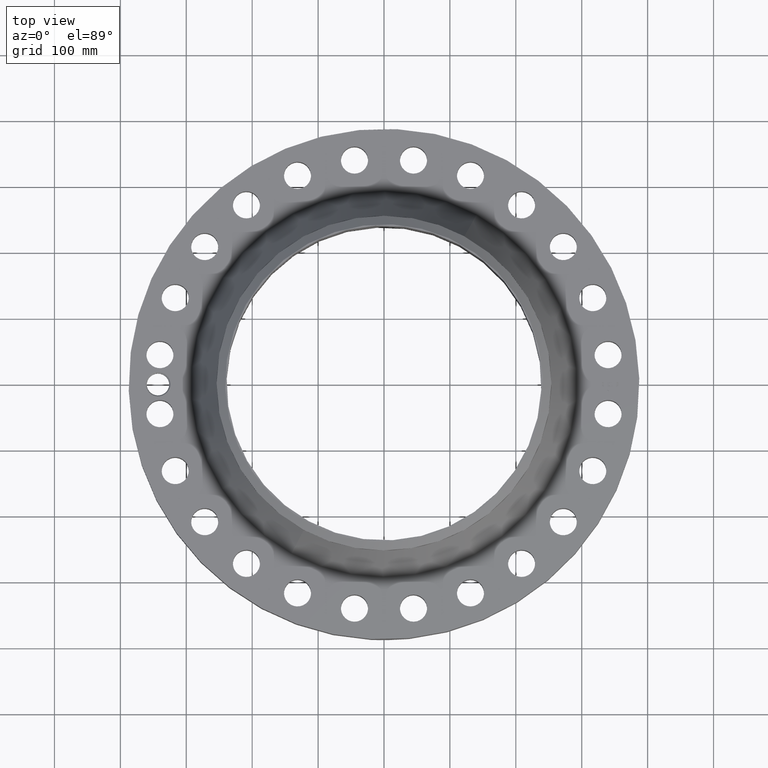
[diagram: clean part render]
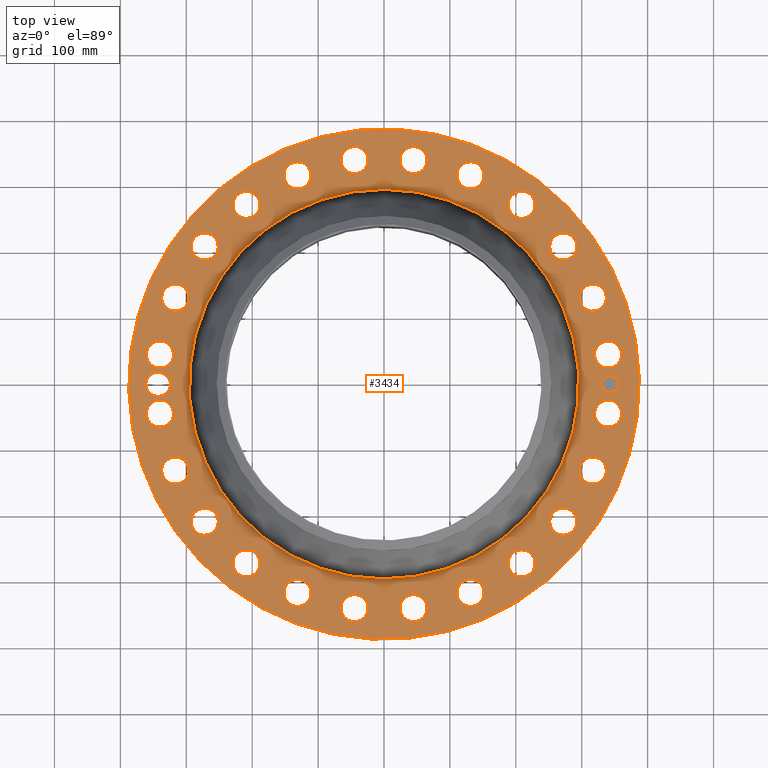
[diagram: same view with one face highlighted and labeled with its STEP entity id]
A machine part, top view. The second image highlights one B-rep face of the part: STEP entity #3434.
In plain terms, the highlighted planar face has unit normal (0, 0, -1).
Its self-contained STEP definition (entity closure, byte-faithful):
#2190=AXIS2_PLACEMENT_3D('Circle Axis2P3D',#2188,#2189,$) ;
#2216=AXIS2_PLACEMENT_3D('Circle Axis2P3D',#2214,#2215,$) ;
#2914=AXIS2_PLACEMENT_3D('Plane Axis2P3D',#2911,#2912,#2913) ;
#2918=AXIS2_PLACEMENT_3D('Circle Axis2P3D',#2916,#2917,$) ;
#2927=AXIS2_PLACEMENT_3D('Circle Axis2P3D',#2925,#2926,$) ;
#2964=AXIS2_PLACEMENT_3D('Circle Axis2P3D',#2962,#2963,$) ;
#2971=AXIS2_PLACEMENT_3D('Circle Axis2P3D',#2969,#2970,$) ;
#2982=AXIS2_PLACEMENT_3D('Circle Axis2P3D',#2980,#2981,$) ;
#2991=AXIS2_PLACEMENT_3D('Circle Axis2P3D',#2989,#2990,$) ;
#3004=AXIS2_PLACEMENT_3D('Circle Axis2P3D',#3002,#3003,$) ;
#3013=AXIS2_PLACEMENT_3D('Circle Axis2P3D',#3011,#3012,$) ;
#3022=AXIS2_PLACEMENT_3D('Circle Axis2P3D',#3020,#3021,$) ;
#3031=AXIS2_PLACEMENT_3D('Circle Axis2P3D',#3029,#3030,$) ;
#3040=AXIS2_PLACEMENT_3D('Circle Axis2P3D',#3038,#3039,$) ;
#3049=AXIS2_PLACEMENT_3D('Circle Axis2P3D',#3047,#3048,$) ;
#3058=AXIS2_PLACEMENT_3D('Circle Axis2P3D',#3056,#3057,$) ;
#3067=AXIS2_PLACEMENT_3D('Circle Axis2P3D',#3065,#3066,$) ;
#3076=AXIS2_PLACEMENT_3D('Circle Axis2P3D',#3074,#3075,$) ;
#3085=AXIS2_PLACEMENT_3D('Circle Axis2P3D',#3083,#3084,$) ;
#3094=AXIS2_PLACEMENT_3D('Circle Axis2P3D',#3092,#3093,$) ;
#3103=AXIS2_PLACEMENT_3D('Circle Axis2P3D',#3101,#3102,$) ;
#3112=AXIS2_PLACEMENT_3D('Circle Axis2P3D',#3110,#3111,$) ;
#3121=AXIS2_PLACEMENT_3D('Circle Axis2P3D',#3119,#3120,$) ;
#3130=AXIS2_PLACEMENT_3D('Circle Axis2P3D',#3128,#3129,$) ;
#3139=AXIS2_PLACEMENT_3D('Circle Axis2P3D',#3137,#3138,$) ;
#3148=AXIS2_PLACEMENT_3D('Circle Axis2P3D',#3146,#3147,$) ;
#3157=AXIS2_PLACEMENT_3D('Circle Axis2P3D',#3155,#3156,$) ;
#3166=AXIS2_PLACEMENT_3D('Circle Axis2P3D',#3164,#3165,$) ;
#3175=AXIS2_PLACEMENT_3D('Circle Axis2P3D',#3173,#3174,$) ;
#3184=AXIS2_PLACEMENT_3D('Circle Axis2P3D',#3182,#3183,$) ;
#3193=AXIS2_PLACEMENT_3D('Circle Axis2P3D',#3191,#3192,$) ;
#3202=AXIS2_PLACEMENT_3D('Circle Axis2P3D',#3200,#3201,$) ;
#3211=AXIS2_PLACEMENT_3D('Circle Axis2P3D',#3209,#3210,$) ;
#3220=AXIS2_PLACEMENT_3D('Circle Axis2P3D',#3218,#3219,$) ;
#3229=AXIS2_PLACEMENT_3D('Circle Axis2P3D',#3227,#3228,$) ;
#3238=AXIS2_PLACEMENT_3D('Circle Axis2P3D',#3236,#3237,$) ;
#3247=AXIS2_PLACEMENT_3D('Circle Axis2P3D',#3245,#3246,$) ;
#3256=AXIS2_PLACEMENT_3D('Circle Axis2P3D',#3254,#3255,$) ;
#3265=AXIS2_PLACEMENT_3D('Circle Axis2P3D',#3263,#3264,$) ;
#3274=AXIS2_PLACEMENT_3D('Circle Axis2P3D',#3272,#3273,$) ;
#3283=AXIS2_PLACEMENT_3D('Circle Axis2P3D',#3281,#3282,$) ;
#3292=AXIS2_PLACEMENT_3D('Circle Axis2P3D',#3290,#3291,$) ;
#3301=AXIS2_PLACEMENT_3D('Circle Axis2P3D',#3299,#3300,$) ;
#3310=AXIS2_PLACEMENT_3D('Circle Axis2P3D',#3308,#3309,$) ;
#3319=AXIS2_PLACEMENT_3D('Circle Axis2P3D',#3317,#3318,$) ;
#3328=AXIS2_PLACEMENT_3D('Circle Axis2P3D',#3326,#3327,$) ;
#3337=AXIS2_PLACEMENT_3D('Circle Axis2P3D',#3335,#3336,$) ;
#3346=AXIS2_PLACEMENT_3D('Circle Axis2P3D',#3344,#3345,$) ;
#3355=AXIS2_PLACEMENT_3D('Circle Axis2P3D',#3353,#3354,$) ;
#3364=AXIS2_PLACEMENT_3D('Circle Axis2P3D',#3362,#3363,$) ;
#3373=AXIS2_PLACEMENT_3D('Circle Axis2P3D',#3371,#3372,$) ;
#3382=AXIS2_PLACEMENT_3D('Circle Axis2P3D',#3380,#3381,$) ;
#3391=AXIS2_PLACEMENT_3D('Circle Axis2P3D',#3389,#3390,$) ;
#3400=AXIS2_PLACEMENT_3D('Circle Axis2P3D',#3398,#3399,$) ;
#3409=AXIS2_PLACEMENT_3D('Circle Axis2P3D',#3407,#3408,$) ;
#3418=AXIS2_PLACEMENT_3D('Circle Axis2P3D',#3416,#3417,$) ;
#3427=AXIS2_PLACEMENT_3D('Circle Axis2P3D',#3425,#3426,$) ;
#2188=CARTESIAN_POINT('Axis2P3D Location',(0.,0.,3.12500000001)) ;
#2192=CARTESIAN_POINT('Vertex',(-5.57830370885,-10.211016447,3.12500000001)) ;
#2194=CARTESIAN_POINT('Vertex',(5.57830370885,10.211016447,3.12500000001)) ;
#2214=CARTESIAN_POINT('Axis2P3D Location',(0.,0.,3.12500000001)) ;
#2911=CARTESIAN_POINT('Axis2P3D Location',(0.,15.2500000001,3.12500000001)) ;
#2916=CARTESIAN_POINT('Axis2P3D Location',(0.,0.,3.12500000001)) ;
#2920=CARTESIAN_POINT('Vertex',(7.31123946374,13.3831340689,3.12500000001)) ;
#2922=CARTESIAN_POINT('Vertex',(-7.31123946374,-13.3831340689,3.12500000001)) ;
#2925=CARTESIAN_POINT('Axis2P3D Location',(0.,0.,3.12500000001)) ;
#2935=CARTESIAN_POINT('Control Point',(-12.7500000001,-2.23792987641E-015,3.12500000001)) ;
#2936=CARTESIAN_POINT('Control Point',(-12.752262941,0.0673684913569,3.12500000001)) ;
#2937=CARTESIAN_POINT('Control Point',(-12.7620945248,0.134362677298,3.12500000001)) ;
#2938=CARTESIAN_POINT('Control Point',(-12.7794410656,0.199838111949,3.12500000001)) ;
#2939=CARTESIAN_POINT('Control Point',(-12.8184599724,0.299736414356,3.12500000001)) ;
#2940=CARTESIAN_POINT('Control Point',(-12.8742750232,0.39041675653,3.12500000001)) ;
#2941=CARTESIAN_POINT('Control Point',(-12.8971885321,0.422593361566,3.12500000001)) ;
#2942=CARTESIAN_POINT('Control Point',(-12.9221619993,0.453104278404,3.12500000001)) ;
#2943=CARTESIAN_POINT('Control Point',(-12.9490316459,0.481779496002,3.12500000001)) ;
#2944=CARTESIAN_POINT('Vertex',(-12.7500000001,-2.23792987641E-015,3.12500000001)) ;
#2946=CARTESIAN_POINT('Vertex',(-12.9490316459,0.481779496002,3.12500000001)) ;
#2950=CARTESIAN_POINT('Control Point',(-12.7500000001,0.,3.12500000001)) ;
#2951=CARTESIAN_POINT('Control Point',(-12.7522635569,-0.0673868237265,3.12500000001)) ;
#2952=CARTESIAN_POINT('Control Point',(-12.7620998827,-0.134399137774,3.12500000001)) ;
#2953=CARTESIAN_POINT('Control Point',(-12.779445479,-0.199869548292,3.12500000001)) ;
#2954=CARTESIAN_POINT('Control Point',(-12.8184799905,-0.299807540299,3.12500000001)) ;
#2955=CARTESIAN_POINT('Control Point',(-12.8742923839,-0.390471181381,3.12500000001)) ;
#2956=CARTESIAN_POINT('Control Point',(-12.8972348658,-0.422676584709,3.12500000001)) ;
#2957=CARTESIAN_POINT('Control Point',(-12.9222362974,-0.453206695873,3.12500000001)) ;
#2958=CARTESIAN_POINT('Control Point',(-12.9491313995,-0.481893551473,3.12500000001)) ;
#2959=CARTESIAN_POINT('Vertex',(-12.9491313995,-0.481893551473,3.12500000001)) ;
#2962=CARTESIAN_POINT('Axis2P3D Location',(-13.5000000001,8.95171950564E-015,3.12500000001)) ;
#2966=CARTESIAN_POINT('Vertex',(-14.1423026771,0.350891551706,3.12500000001)) ;
#2969=CARTESIAN_POINT('Axis2P3D Location',(-13.5000000001,8.95171950564E-015,3.12500000001)) ;
#2980=CARTESIAN_POINT('Axis2P3D Location',(13.3845056286,-1.76210359498,3.12500000001)) ;
#2984=CARTESIAN_POINT('Vertex',(12.6736637535,-1.37376890871,3.12500000001)) ;
#2986=CARTESIAN_POINT('Vertex',(14.0953475037,-2.15043828125,3.12500000001)) ;
#2989=CARTESIAN_POINT('Axis2P3D Location',(13.3845056286,-1.76210359498,3.12500000001)) ;
#3002=CARTESIAN_POINT('Axis2P3D Location',(12.472373689,-5.16622633695,3.12500000001)) ;
#3006=CARTESIAN_POINT('Vertex',(13.0584858019,-5.725308255,3.12500000001)) ;
#3008=CARTESIAN_POINT('Vertex',(11.886261576,-4.6071444189,3.12500000001)) ;
#3011=CARTESIAN_POINT('Axis2P3D Location',(12.472373689,-5.16622633695,3.12500000001)) ;
#3020=CARTESIAN_POINT('Axis2P3D Location',(10.710270094,-8.21827929165,3.12500000001)) ;
#3024=CARTESIAN_POINT('Vertex',(11.1317098728,-8.9100079327,3.12500000001)) ;
#3026=CARTESIAN_POINT('Vertex',(10.2888303152,-7.5265506506,3.12500000001)) ;
#3029=CARTESIAN_POINT('Axis2P3D Location',(10.710270094,-8.21827929165,3.12500000001)) ;
#3038=CARTESIAN_POINT('Axis2P3D Location',(8.21827929165,-10.710270094,3.12500000001)) ;
#3042=CARTESIAN_POINT('Vertex',(8.44632631188,-11.4875052943,3.12500000001)) ;
#3044=CARTESIAN_POINT('Vertex',(7.99023227142,-9.93303489368,3.12500000001)) ;
#3047=CARTESIAN_POINT('Axis2P3D Location',(8.21827929165,-10.710270094,3.12500000001)) ;
#3056=CARTESIAN_POINT('Axis2P3D Location',(5.16622633695,-12.472373689,3.12500000001)) ;
#3060=CARTESIAN_POINT('Vertex',(5.18533957104,-13.282148154,3.12500000001)) ;
#3062=CARTESIAN_POINT('Vertex',(5.14711310286,-11.6625992239,3.12500000001)) ;
#3065=CARTESIAN_POINT('Axis2P3D Location',(5.16622633695,-12.472373689,3.12500000001)) ;
#3074=CARTESIAN_POINT('Axis2P3D Location',(1.76210359498,-13.3845056286,3.12500000001)) ;
#3078=CARTESIAN_POINT('Vertex',(1.57098050761,-14.1716345669,3.12500000001)) ;
#3080=CARTESIAN_POINT('Vertex',(1.95322668235,-12.5973766903,3.12500000001)) ;
#3083=CARTESIAN_POINT('Axis2P3D Location',(1.76210359498,-13.3845056286,3.12500000001)) ;
#3092=CARTESIAN_POINT('Axis2P3D Location',(-1.76210359498,-13.3845056286,3.12500000001)) ;
#3096=CARTESIAN_POINT('Vertex',(-2.15043828125,-14.0953475037,3.12500000001)) ;
#3098=CARTESIAN_POINT('Vertex',(-1.37376890871,-12.6736637535,3.12500000001)) ;
#3101=CARTESIAN_POINT('Axis2P3D Location',(-1.76210359498,-13.3845056286,3.12500000001)) ;
#3110=CARTESIAN_POINT('Axis2P3D Location',(-5.16622633695,-12.472373689,3.12500000001)) ;
#3114=CARTESIAN_POINT('Vertex',(-5.725308255,-13.0584858019,3.12500000001)) ;
#3116=CARTESIAN_POINT('Vertex',(-4.6071444189,-11.886261576,3.12500000001)) ;
#3119=CARTESIAN_POINT('Axis2P3D Location',(-5.16622633695,-12.472373689,3.12500000001)) ;
#3128=CARTESIAN_POINT('Axis2P3D Location',(-8.21827929165,-10.710270094,3.12500000001)) ;
#3132=CARTESIAN_POINT('Vertex',(-8.9100079327,-11.1317098728,3.12500000001)) ;
#3134=CARTESIAN_POINT('Vertex',(-7.5265506506,-10.2888303152,3.12500000001)) ;
#3137=CARTESIAN_POINT('Axis2P3D Location',(-8.21827929165,-10.710270094,3.12500000001)) ;
#3146=CARTESIAN_POINT('Axis2P3D Location',(-10.710270094,-8.21827929165,3.12500000001)) ;
#3150=CARTESIAN_POINT('Vertex',(-11.4875052943,-8.44632631188,3.12500000001)) ;
#3152=CARTESIAN_POINT('Vertex',(-9.93303489368,-7.99023227142,3.12500000001)) ;
#3155=CARTESIAN_POINT('Axis2P3D Location',(-10.710270094,-8.21827929165,3.12500000001)) ;
#3164=CARTESIAN_POINT('Axis2P3D Location',(-12.472373689,-5.16622633695,3.12500000001)) ;
#3168=CARTESIAN_POINT('Vertex',(-13.282148154,-5.18533957104,3.12500000001)) ;
#3170=CARTESIAN_POINT('Vertex',(-11.6625992239,-5.14711310286,3.12500000001)) ;
#3173=CARTESIAN_POINT('Axis2P3D Location',(-12.472373689,-5.16622633695,3.12500000001)) ;
#3182=CARTESIAN_POINT('Axis2P3D Location',(-13.3845056286,-1.76210359498,3.12500000001)) ;
#3186=CARTESIAN_POINT('Vertex',(-14.1716345669,-1.57098050761,3.12500000001)) ;
#3188=CARTESIAN_POINT('Vertex',(-12.5973766903,-1.95322668235,3.12500000001)) ;
#3191=CARTESIAN_POINT('Axis2P3D Location',(-13.3845056286,-1.76210359498,3.12500000001)) ;
#3200=CARTESIAN_POINT('Axis2P3D Location',(-13.3845056286,1.76210359498,3.12500000001)) ;
#3204=CARTESIAN_POINT('Vertex',(-14.0953475037,2.15043828125,3.12500000001)) ;
#3206=CARTESIAN_POINT('Vertex',(-12.6736637535,1.37376890871,3.12500000001)) ;
#3209=CARTESIAN_POINT('Axis2P3D Location',(-13.3845056286,1.76210359498,3.12500000001)) ;
#3218=CARTESIAN_POINT('Axis2P3D Location',(-12.472373689,5.16622633695,3.12500000001)) ;
#3222=CARTESIAN_POINT('Vertex',(-13.0584858019,5.725308255,3.12500000001)) ;
#3224=CARTESIAN_POINT('Vertex',(-11.886261576,4.6071444189,3.12500000001)) ;
#3227=CARTESIAN_POINT('Axis2P3D Location',(-12.472373689,5.16622633695,3.12500000001)) ;
#3236=CARTESIAN_POINT('Axis2P3D Location',(-10.710270094,8.21827929165,3.12500000001)) ;
#3240=CARTESIAN_POINT('Vertex',(-11.1317098728,8.9100079327,3.12500000001)) ;
#3242=CARTESIAN_POINT('Vertex',(-10.2888303152,7.5265506506,3.12500000001)) ;
#3245=CARTESIAN_POINT('Axis2P3D Location',(-10.710270094,8.21827929165,3.12500000001)) ;
#3254=CARTESIAN_POINT('Axis2P3D Location',(-8.21827929165,10.710270094,3.12500000001)) ;
#3258=CARTESIAN_POINT('Vertex',(-8.44632631188,11.4875052943,3.12500000001)) ;
#3260=CARTESIAN_POINT('Vertex',(-7.99023227142,9.93303489368,3.12500000001)) ;
#3263=CARTESIAN_POINT('Axis2P3D Location',(-8.21827929165,10.710270094,3.12500000001)) ;
#3272=CARTESIAN_POINT('Axis2P3D Location',(-5.16622633695,12.472373689,3.12500000001)) ;
#3276=CARTESIAN_POINT('Vertex',(-5.18533957104,13.282148154,3.12500000001)) ;
#3278=CARTESIAN_POINT('Vertex',(-5.14711310286,11.6625992239,3.12500000001)) ;
#3281=CARTESIAN_POINT('Axis2P3D Location',(-5.16622633695,12.472373689,3.12500000001)) ;
#3290=CARTESIAN_POINT('Axis2P3D Location',(-1.76210359498,13.3845056286,3.12500000001)) ;
#3294=CARTESIAN_POINT('Vertex',(-1.57098050761,14.1716345669,3.12500000001)) ;
#3296=CARTESIAN_POINT('Vertex',(-1.95322668235,12.5973766903,3.12500000001)) ;
#3299=CARTESIAN_POINT('Axis2P3D Location',(-1.76210359498,13.3845056286,3.12500000001)) ;
#3308=CARTESIAN_POINT('Axis2P3D Location',(1.76210359498,13.3845056286,3.12500000001)) ;
#3312=CARTESIAN_POINT('Vertex',(2.15043828125,14.0953475037,3.12500000001)) ;
#3314=CARTESIAN_POINT('Vertex',(1.37376890871,12.6736637535,3.12500000001)) ;
#3317=CARTESIAN_POINT('Axis2P3D Location',(1.76210359498,13.3845056286,3.12500000001)) ;
#3326=CARTESIAN_POINT('Axis2P3D Location',(5.16622633695,12.472373689,3.12500000001)) ;
#3330=CARTESIAN_POINT('Vertex',(5.725308255,13.0584858019,3.12500000001)) ;
#3332=CARTESIAN_POINT('Vertex',(4.6071444189,11.886261576,3.12500000001)) ;
#3335=CARTESIAN_POINT('Axis2P3D Location',(5.16622633695,12.472373689,3.12500000001)) ;
#3344=CARTESIAN_POINT('Axis2P3D Location',(8.21827929165,10.710270094,3.12500000001)) ;
#3348=CARTESIAN_POINT('Vertex',(8.9100079327,11.1317098728,3.12500000001)) ;
#3350=CARTESIAN_POINT('Vertex',(7.5265506506,10.2888303152,3.12500000001)) ;
#3353=CARTESIAN_POINT('Axis2P3D Location',(8.21827929165,10.710270094,3.12500000001)) ;
#3362=CARTESIAN_POINT('Axis2P3D Location',(10.710270094,8.21827929165,3.12500000001)) ;
#3366=CARTESIAN_POINT('Vertex',(11.4875052943,8.44632631188,3.12500000001)) ;
#3368=CARTESIAN_POINT('Vertex',(9.93303489368,7.99023227142,3.12500000001)) ;
#3371=CARTESIAN_POINT('Axis2P3D Location',(10.710270094,8.21827929165,3.12500000001)) ;
#3380=CARTESIAN_POINT('Axis2P3D Location',(12.472373689,5.16622633695,3.12500000001)) ;
#3384=CARTESIAN_POINT('Vertex',(13.282148154,5.18533957104,3.12500000001)) ;
#3386=CARTESIAN_POINT('Vertex',(11.6625992239,5.14711310286,3.12500000001)) ;
#3389=CARTESIAN_POINT('Axis2P3D Location',(12.472373689,5.16622633695,3.12500000001)) ;
#3398=CARTESIAN_POINT('Axis2P3D Location',(13.3845056286,1.76210359498,3.12500000001)) ;
#3402=CARTESIAN_POINT('Vertex',(14.1716345669,1.57098050761,3.12500000001)) ;
#3404=CARTESIAN_POINT('Vertex',(12.5973766903,1.95322668235,3.12500000001)) ;
#3407=CARTESIAN_POINT('Axis2P3D Location',(13.3845056286,1.76210359498,3.12500000001)) ;
#3416=CARTESIAN_POINT('Axis2P3D Location',(13.5000000001,0.,3.12500000001)) ;
#3420=CARTESIAN_POINT('Vertex',(13.5000000001,0.499999995002,3.12500000001)) ;
#3422=CARTESIAN_POINT('Vertex',(13.5000000001,-0.499999995002,3.12500000001)) ;
#3425=CARTESIAN_POINT('Axis2P3D Location',(13.5000000001,0.,3.12500000001)) ;
#2189=DIRECTION('Axis2P3D Direction',(0.,0.,-0.0393700787402)) ;
#2215=DIRECTION('Axis2P3D Direction',(0.,0.,-0.0393700787402)) ;
#2912=DIRECTION('Axis2P3D Direction',(0.,0.,-0.0393700787402)) ;
#2913=DIRECTION('Axis2P3D XDirection',(0.0393700787402,0.,0.)) ;
#2917=DIRECTION('Axis2P3D Direction',(0.,0.,-0.0393700787402)) ;
#2926=DIRECTION('Axis2P3D Direction',(0.,0.,-0.0393700787402)) ;
#2963=DIRECTION('Axis2P3D Direction',(0.,0.,-0.0393700787402)) ;
#2970=DIRECTION('Axis2P3D Direction',(0.,0.,-0.0393700787402)) ;
#2981=DIRECTION('Axis2P3D Direction',(0.,0.,-0.0393700787402)) ;
#2990=DIRECTION('Axis2P3D Direction',(0.,0.,-0.0393700787402)) ;
#3003=DIRECTION('Axis2P3D Direction',(0.,0.,-0.0393700787402)) ;
#3012=DIRECTION('Axis2P3D Direction',(0.,0.,-0.0393700787402)) ;
#3021=DIRECTION('Axis2P3D Direction',(0.,0.,-0.0393700787402)) ;
#3030=DIRECTION('Axis2P3D Direction',(0.,0.,-0.0393700787402)) ;
#3039=DIRECTION('Axis2P3D Direction',(0.,0.,-0.0393700787402)) ;
#3048=DIRECTION('Axis2P3D Direction',(0.,0.,-0.0393700787402)) ;
#3057=DIRECTION('Axis2P3D Direction',(0.,0.,-0.0393700787402)) ;
#3066=DIRECTION('Axis2P3D Direction',(0.,0.,-0.0393700787402)) ;
#3075=DIRECTION('Axis2P3D Direction',(0.,0.,-0.0393700787402)) ;
#3084=DIRECTION('Axis2P3D Direction',(0.,0.,-0.0393700787402)) ;
#3093=DIRECTION('Axis2P3D Direction',(0.,0.,-0.0393700787402)) ;
#3102=DIRECTION('Axis2P3D Direction',(0.,0.,-0.0393700787402)) ;
#3111=DIRECTION('Axis2P3D Direction',(0.,0.,-0.0393700787402)) ;
#3120=DIRECTION('Axis2P3D Direction',(0.,0.,-0.0393700787402)) ;
#3129=DIRECTION('Axis2P3D Direction',(0.,0.,-0.0393700787402)) ;
#3138=DIRECTION('Axis2P3D Direction',(0.,0.,-0.0393700787402)) ;
#3147=DIRECTION('Axis2P3D Direction',(0.,0.,-0.0393700787402)) ;
#3156=DIRECTION('Axis2P3D Direction',(0.,0.,-0.0393700787402)) ;
#3165=DIRECTION('Axis2P3D Direction',(0.,0.,-0.0393700787402)) ;
#3174=DIRECTION('Axis2P3D Direction',(0.,0.,-0.0393700787402)) ;
#3183=DIRECTION('Axis2P3D Direction',(0.,0.,-0.0393700787402)) ;
#3192=DIRECTION('Axis2P3D Direction',(0.,0.,-0.0393700787402)) ;
#3201=DIRECTION('Axis2P3D Direction',(0.,0.,-0.0393700787402)) ;
#3210=DIRECTION('Axis2P3D Direction',(0.,0.,-0.0393700787402)) ;
#3219=DIRECTION('Axis2P3D Direction',(0.,0.,-0.0393700787402)) ;
#3228=DIRECTION('Axis2P3D Direction',(0.,0.,-0.0393700787402)) ;
#3237=DIRECTION('Axis2P3D Direction',(0.,0.,-0.0393700787402)) ;
#3246=DIRECTION('Axis2P3D Direction',(0.,0.,-0.0393700787402)) ;
#3255=DIRECTION('Axis2P3D Direction',(0.,0.,-0.0393700787402)) ;
#3264=DIRECTION('Axis2P3D Direction',(0.,0.,-0.0393700787402)) ;
#3273=DIRECTION('Axis2P3D Direction',(0.,0.,-0.0393700787402)) ;
#3282=DIRECTION('Axis2P3D Direction',(0.,0.,-0.0393700787402)) ;
#3291=DIRECTION('Axis2P3D Direction',(0.,0.,-0.0393700787402)) ;
#3300=DIRECTION('Axis2P3D Direction',(0.,0.,-0.0393700787402)) ;
#3309=DIRECTION('Axis2P3D Direction',(0.,0.,-0.0393700787402)) ;
#3318=DIRECTION('Axis2P3D Direction',(0.,0.,-0.0393700787402)) ;
#3327=DIRECTION('Axis2P3D Direction',(0.,0.,-0.0393700787402)) ;
#3336=DIRECTION('Axis2P3D Direction',(0.,0.,-0.0393700787402)) ;
#3345=DIRECTION('Axis2P3D Direction',(0.,0.,-0.0393700787402)) ;
#3354=DIRECTION('Axis2P3D Direction',(0.,0.,-0.0393700787402)) ;
#3363=DIRECTION('Axis2P3D Direction',(0.,0.,-0.0393700787402)) ;
#3372=DIRECTION('Axis2P3D Direction',(0.,0.,-0.0393700787402)) ;
#3381=DIRECTION('Axis2P3D Direction',(0.,0.,-0.0393700787402)) ;
#3390=DIRECTION('Axis2P3D Direction',(0.,0.,-0.0393700787402)) ;
#3399=DIRECTION('Axis2P3D Direction',(0.,0.,-0.0393700787402)) ;
#3408=DIRECTION('Axis2P3D Direction',(0.,0.,-0.0393700787402)) ;
#3417=DIRECTION('Axis2P3D Direction',(0.,0.,-0.0393700787402)) ;
#3426=DIRECTION('Axis2P3D Direction',(0.,0.,-0.0393700787402)) ;
#2931=ORIENTED_EDGE('',*,*,#2924,.F.) ;
#2932=ORIENTED_EDGE('',*,*,#2929,.F.) ;
#2975=ORIENTED_EDGE('',*,*,#2948,.F.) ;
#2976=ORIENTED_EDGE('',*,*,#2961,.T.) ;
#2977=ORIENTED_EDGE('',*,*,#2968,.T.) ;
#2978=ORIENTED_EDGE('',*,*,#2973,.T.) ;
#2995=ORIENTED_EDGE('',*,*,#2988,.T.) ;
#2996=ORIENTED_EDGE('',*,*,#2993,.T.) ;
#2999=ORIENTED_EDGE('',*,*,#2196,.T.) ;
#3000=ORIENTED_EDGE('',*,*,#2218,.T.) ;
#3017=ORIENTED_EDGE('',*,*,#3010,.T.) ;
#3018=ORIENTED_EDGE('',*,*,#3015,.T.) ;
#3035=ORIENTED_EDGE('',*,*,#3028,.T.) ;
#3036=ORIENTED_EDGE('',*,*,#3033,.T.) ;
#3053=ORIENTED_EDGE('',*,*,#3046,.T.) ;
#3054=ORIENTED_EDGE('',*,*,#3051,.T.) ;
#3071=ORIENTED_EDGE('',*,*,#3064,.T.) ;
#3072=ORIENTED_EDGE('',*,*,#3069,.T.) ;
#3089=ORIENTED_EDGE('',*,*,#3082,.T.) ;
#3090=ORIENTED_EDGE('',*,*,#3087,.T.) ;
#3107=ORIENTED_EDGE('',*,*,#3100,.T.) ;
#3108=ORIENTED_EDGE('',*,*,#3105,.T.) ;
#3125=ORIENTED_EDGE('',*,*,#3118,.T.) ;
#3126=ORIENTED_EDGE('',*,*,#3123,.T.) ;
#3143=ORIENTED_EDGE('',*,*,#3136,.T.) ;
#3144=ORIENTED_EDGE('',*,*,#3141,.T.) ;
#3161=ORIENTED_EDGE('',*,*,#3154,.T.) ;
#3162=ORIENTED_EDGE('',*,*,#3159,.T.) ;
#3179=ORIENTED_EDGE('',*,*,#3172,.T.) ;
#3180=ORIENTED_EDGE('',*,*,#3177,.T.) ;
#3197=ORIENTED_EDGE('',*,*,#3190,.T.) ;
#3198=ORIENTED_EDGE('',*,*,#3195,.T.) ;
#3215=ORIENTED_EDGE('',*,*,#3208,.T.) ;
#3216=ORIENTED_EDGE('',*,*,#3213,.T.) ;
#3233=ORIENTED_EDGE('',*,*,#3226,.T.) ;
#3234=ORIENTED_EDGE('',*,*,#3231,.T.) ;
#3251=ORIENTED_EDGE('',*,*,#3244,.T.) ;
#3252=ORIENTED_EDGE('',*,*,#3249,.T.) ;
#3269=ORIENTED_EDGE('',*,*,#3262,.T.) ;
#3270=ORIENTED_EDGE('',*,*,#3267,.T.) ;
#3287=ORIENTED_EDGE('',*,*,#3280,.T.) ;
#3288=ORIENTED_EDGE('',*,*,#3285,.T.) ;
#3305=ORIENTED_EDGE('',*,*,#3298,.T.) ;
#3306=ORIENTED_EDGE('',*,*,#3303,.T.) ;
#3323=ORIENTED_EDGE('',*,*,#3316,.T.) ;
#3324=ORIENTED_EDGE('',*,*,#3321,.T.) ;
#3341=ORIENTED_EDGE('',*,*,#3334,.T.) ;
#3342=ORIENTED_EDGE('',*,*,#3339,.T.) ;
#3359=ORIENTED_EDGE('',*,*,#3352,.T.) ;
#3360=ORIENTED_EDGE('',*,*,#3357,.T.) ;
#3377=ORIENTED_EDGE('',*,*,#3370,.T.) ;
#3378=ORIENTED_EDGE('',*,*,#3375,.T.) ;
#3395=ORIENTED_EDGE('',*,*,#3388,.T.) ;
#3396=ORIENTED_EDGE('',*,*,#3393,.T.) ;
#3413=ORIENTED_EDGE('',*,*,#3406,.T.) ;
#3414=ORIENTED_EDGE('',*,*,#3411,.T.) ;
#3431=ORIENTED_EDGE('',*,*,#3424,.T.) ;
#3432=ORIENTED_EDGE('',*,*,#3429,.T.) ;
#2979=FACE_BOUND('',#2974,.T.) ;
#2997=FACE_BOUND('',#2994,.T.) ;
#3001=FACE_BOUND('',#2998,.T.) ;
#3019=FACE_BOUND('',#3016,.T.) ;
#3037=FACE_BOUND('',#3034,.T.) ;
#3055=FACE_BOUND('',#3052,.T.) ;
#3073=FACE_BOUND('',#3070,.T.) ;
#3091=FACE_BOUND('',#3088,.T.) ;
#3109=FACE_BOUND('',#3106,.T.) ;
#3127=FACE_BOUND('',#3124,.T.) ;
#3145=FACE_BOUND('',#3142,.T.) ;
#3163=FACE_BOUND('',#3160,.T.) ;
#3181=FACE_BOUND('',#3178,.T.) ;
#3199=FACE_BOUND('',#3196,.T.) ;
#3217=FACE_BOUND('',#3214,.T.) ;
#3235=FACE_BOUND('',#3232,.T.) ;
#3253=FACE_BOUND('',#3250,.T.) ;
#3271=FACE_BOUND('',#3268,.T.) ;
#3289=FACE_BOUND('',#3286,.T.) ;
#3307=FACE_BOUND('',#3304,.T.) ;
#3325=FACE_BOUND('',#3322,.T.) ;
#3343=FACE_BOUND('',#3340,.T.) ;
#3361=FACE_BOUND('',#3358,.T.) ;
#3379=FACE_BOUND('',#3376,.T.) ;
#3397=FACE_BOUND('',#3394,.T.) ;
#3415=FACE_BOUND('',#3412,.T.) ;
#3433=FACE_BOUND('',#3430,.T.) ;
#3434=ADVANCED_FACE('PartBody',(#2933,#2979,#2997,#3001,#3019,#3037,#3055,#3073,#3091,#3109,#3127,#3145,#3163,#3181,#3199,#3217,#3235,#3253,#3271,#3289,#3307,#3325,#3343,#3361,#3379,#3397,#3415,#3433),#2915,.F.) ;
#2934=B_SPLINE_CURVE_WITH_KNOTS('',5,(#2935,#2936,#2937,#2938,#2939,#2940,#2941,#2942,#2943),.UNSPECIFIED.,.F.,.U.,(6,3,6),(0.,11.8009738027,18.7642855946),.UNSPECIFIED.) ;
#2949=B_SPLINE_CURVE_WITH_KNOTS('',5,(#2950,#2951,#2952,#2953,#2954,#2955,#2956,#2957,#2958),.UNSPECIFIED.,.F.,.U.,(6,3,6),(0.,11.8041850935,18.7846344754),.UNSPECIFIED.) ;
#2191=CIRCLE('generated circle',#2190,11.6353912332) ;
#2217=CIRCLE('generated circle',#2216,11.6353912332) ;
#2919=CIRCLE('generated circle',#2918,15.2500000001) ;
#2928=CIRCLE('generated circle',#2927,15.2500000001) ;
#2965=CIRCLE('generated circle',#2964,0.731900000003) ;
#2972=CIRCLE('generated circle',#2971,0.731900000003) ;
#2983=CIRCLE('generated circle',#2982,0.810000000003) ;
#2992=CIRCLE('generated circle',#2991,0.810000000003) ;
#3005=CIRCLE('generated circle',#3004,0.810000000003) ;
#3014=CIRCLE('generated circle',#3013,0.810000000003) ;
#3023=CIRCLE('generated circle',#3022,0.810000000003) ;
#3032=CIRCLE('generated circle',#3031,0.810000000003) ;
#3041=CIRCLE('generated circle',#3040,0.810000000003) ;
#3050=CIRCLE('generated circle',#3049,0.810000000003) ;
#3059=CIRCLE('generated circle',#3058,0.810000000003) ;
#3068=CIRCLE('generated circle',#3067,0.810000000003) ;
#3077=CIRCLE('generated circle',#3076,0.810000000003) ;
#3086=CIRCLE('generated circle',#3085,0.810000000003) ;
#3095=CIRCLE('generated circle',#3094,0.810000000003) ;
#3104=CIRCLE('generated circle',#3103,0.810000000003) ;
#3113=CIRCLE('generated circle',#3112,0.810000000003) ;
#3122=CIRCLE('generated circle',#3121,0.810000000003) ;
#3131=CIRCLE('generated circle',#3130,0.810000000003) ;
#3140=CIRCLE('generated circle',#3139,0.810000000003) ;
#3149=CIRCLE('generated circle',#3148,0.810000000003) ;
#3158=CIRCLE('generated circle',#3157,0.810000000003) ;
#3167=CIRCLE('generated circle',#3166,0.810000000003) ;
#3176=CIRCLE('generated circle',#3175,0.810000000003) ;
#3185=CIRCLE('generated circle',#3184,0.810000000003) ;
#3194=CIRCLE('generated circle',#3193,0.810000000003) ;
#3203=CIRCLE('generated circle',#3202,0.810000000003) ;
#3212=CIRCLE('generated circle',#3211,0.810000000003) ;
#3221=CIRCLE('generated circle',#3220,0.810000000003) ;
#3230=CIRCLE('generated circle',#3229,0.810000000003) ;
#3239=CIRCLE('generated circle',#3238,0.810000000003) ;
#3248=CIRCLE('generated circle',#3247,0.810000000003) ;
#3257=CIRCLE('generated circle',#3256,0.810000000003) ;
#3266=CIRCLE('generated circle',#3265,0.810000000003) ;
#3275=CIRCLE('generated circle',#3274,0.810000000003) ;
#3284=CIRCLE('generated circle',#3283,0.810000000003) ;
#3293=CIRCLE('generated circle',#3292,0.810000000003) ;
#3302=CIRCLE('generated circle',#3301,0.810000000003) ;
#3311=CIRCLE('generated circle',#3310,0.810000000003) ;
#3320=CIRCLE('generated circle',#3319,0.810000000003) ;
#3329=CIRCLE('generated circle',#3328,0.810000000003) ;
#3338=CIRCLE('generated circle',#3337,0.810000000003) ;
#3347=CIRCLE('generated circle',#3346,0.810000000003) ;
#3356=CIRCLE('generated circle',#3355,0.810000000003) ;
#3365=CIRCLE('generated circle',#3364,0.810000000003) ;
#3374=CIRCLE('generated circle',#3373,0.810000000003) ;
#3383=CIRCLE('generated circle',#3382,0.810000000003) ;
#3392=CIRCLE('generated circle',#3391,0.810000000003) ;
#3401=CIRCLE('generated circle',#3400,0.810000000003) ;
#3410=CIRCLE('generated circle',#3409,0.810000000003) ;
#3419=CIRCLE('generated circle',#3418,0.499999995002) ;
#3428=CIRCLE('generated circle',#3427,0.499999995002) ;
#2196=EDGE_CURVE('',#2193,#2195,#2191,.T.) ;
#2218=EDGE_CURVE('',#2195,#2193,#2217,.T.) ;
#2924=EDGE_CURVE('',#2921,#2923,#2919,.T.) ;
#2929=EDGE_CURVE('',#2923,#2921,#2928,.T.) ;
#2948=EDGE_CURVE('',#2945,#2947,#2934,.T.) ;
#2961=EDGE_CURVE('',#2945,#2960,#2949,.T.) ;
#2968=EDGE_CURVE('',#2960,#2967,#2965,.T.) ;
#2973=EDGE_CURVE('',#2967,#2947,#2972,.T.) ;
#2988=EDGE_CURVE('',#2985,#2987,#2983,.T.) ;
#2993=EDGE_CURVE('',#2987,#2985,#2992,.T.) ;
#3010=EDGE_CURVE('',#3007,#3009,#3005,.T.) ;
#3015=EDGE_CURVE('',#3009,#3007,#3014,.T.) ;
#3028=EDGE_CURVE('',#3025,#3027,#3023,.T.) ;
#3033=EDGE_CURVE('',#3027,#3025,#3032,.T.) ;
#3046=EDGE_CURVE('',#3043,#3045,#3041,.T.) ;
#3051=EDGE_CURVE('',#3045,#3043,#3050,.T.) ;
#3064=EDGE_CURVE('',#3061,#3063,#3059,.T.) ;
#3069=EDGE_CURVE('',#3063,#3061,#3068,.T.) ;
#3082=EDGE_CURVE('',#3079,#3081,#3077,.T.) ;
#3087=EDGE_CURVE('',#3081,#3079,#3086,.T.) ;
#3100=EDGE_CURVE('',#3097,#3099,#3095,.T.) ;
#3105=EDGE_CURVE('',#3099,#3097,#3104,.T.) ;
#3118=EDGE_CURVE('',#3115,#3117,#3113,.T.) ;
#3123=EDGE_CURVE('',#3117,#3115,#3122,.T.) ;
#3136=EDGE_CURVE('',#3133,#3135,#3131,.T.) ;
#3141=EDGE_CURVE('',#3135,#3133,#3140,.T.) ;
#3154=EDGE_CURVE('',#3151,#3153,#3149,.T.) ;
#3159=EDGE_CURVE('',#3153,#3151,#3158,.T.) ;
#3172=EDGE_CURVE('',#3169,#3171,#3167,.T.) ;
#3177=EDGE_CURVE('',#3171,#3169,#3176,.T.) ;
#3190=EDGE_CURVE('',#3187,#3189,#3185,.T.) ;
#3195=EDGE_CURVE('',#3189,#3187,#3194,.T.) ;
#3208=EDGE_CURVE('',#3205,#3207,#3203,.T.) ;
#3213=EDGE_CURVE('',#3207,#3205,#3212,.T.) ;
#3226=EDGE_CURVE('',#3223,#3225,#3221,.T.) ;
#3231=EDGE_CURVE('',#3225,#3223,#3230,.T.) ;
#3244=EDGE_CURVE('',#3241,#3243,#3239,.T.) ;
#3249=EDGE_CURVE('',#3243,#3241,#3248,.T.) ;
#3262=EDGE_CURVE('',#3259,#3261,#3257,.T.) ;
#3267=EDGE_CURVE('',#3261,#3259,#3266,.T.) ;
#3280=EDGE_CURVE('',#3277,#3279,#3275,.T.) ;
#3285=EDGE_CURVE('',#3279,#3277,#3284,.T.) ;
#3298=EDGE_CURVE('',#3295,#3297,#3293,.T.) ;
#3303=EDGE_CURVE('',#3297,#3295,#3302,.T.) ;
#3316=EDGE_CURVE('',#3313,#3315,#3311,.T.) ;
#3321=EDGE_CURVE('',#3315,#3313,#3320,.T.) ;
#3334=EDGE_CURVE('',#3331,#3333,#3329,.T.) ;
#3339=EDGE_CURVE('',#3333,#3331,#3338,.T.) ;
#3352=EDGE_CURVE('',#3349,#3351,#3347,.T.) ;
#3357=EDGE_CURVE('',#3351,#3349,#3356,.T.) ;
#3370=EDGE_CURVE('',#3367,#3369,#3365,.T.) ;
#3375=EDGE_CURVE('',#3369,#3367,#3374,.T.) ;
#3388=EDGE_CURVE('',#3385,#3387,#3383,.T.) ;
#3393=EDGE_CURVE('',#3387,#3385,#3392,.T.) ;
#3406=EDGE_CURVE('',#3403,#3405,#3401,.T.) ;
#3411=EDGE_CURVE('',#3405,#3403,#3410,.T.) ;
#3424=EDGE_CURVE('',#3421,#3423,#3419,.T.) ;
#3429=EDGE_CURVE('',#3423,#3421,#3428,.T.) ;
#2930=EDGE_LOOP('',(#2931,#2932)) ;
#2974=EDGE_LOOP('',(#2975,#2976,#2977,#2978)) ;
#2994=EDGE_LOOP('',(#2995,#2996)) ;
#2998=EDGE_LOOP('',(#2999,#3000)) ;
#3016=EDGE_LOOP('',(#3017,#3018)) ;
#3034=EDGE_LOOP('',(#3035,#3036)) ;
#3052=EDGE_LOOP('',(#3053,#3054)) ;
#3070=EDGE_LOOP('',(#3071,#3072)) ;
#3088=EDGE_LOOP('',(#3089,#3090)) ;
#3106=EDGE_LOOP('',(#3107,#3108)) ;
#3124=EDGE_LOOP('',(#3125,#3126)) ;
#3142=EDGE_LOOP('',(#3143,#3144)) ;
#3160=EDGE_LOOP('',(#3161,#3162)) ;
#3178=EDGE_LOOP('',(#3179,#3180)) ;
#3196=EDGE_LOOP('',(#3197,#3198)) ;
#3214=EDGE_LOOP('',(#3215,#3216)) ;
#3232=EDGE_LOOP('',(#3233,#3234)) ;
#3250=EDGE_LOOP('',(#3251,#3252)) ;
#3268=EDGE_LOOP('',(#3269,#3270)) ;
#3286=EDGE_LOOP('',(#3287,#3288)) ;
#3304=EDGE_LOOP('',(#3305,#3306)) ;
#3322=EDGE_LOOP('',(#3323,#3324)) ;
#3340=EDGE_LOOP('',(#3341,#3342)) ;
#3358=EDGE_LOOP('',(#3359,#3360)) ;
#3376=EDGE_LOOP('',(#3377,#3378)) ;
#3394=EDGE_LOOP('',(#3395,#3396)) ;
#3412=EDGE_LOOP('',(#3413,#3414)) ;
#3430=EDGE_LOOP('',(#3431,#3432)) ;
#2933=FACE_OUTER_BOUND('',#2930,.T.) ;
#2915=PLANE('',#2914) ;
#2193=VERTEX_POINT('',#2192) ;
#2195=VERTEX_POINT('',#2194) ;
#2921=VERTEX_POINT('',#2920) ;
#2923=VERTEX_POINT('',#2922) ;
#2945=VERTEX_POINT('',#2944) ;
#2947=VERTEX_POINT('',#2946) ;
#2960=VERTEX_POINT('',#2959) ;
#2967=VERTEX_POINT('',#2966) ;
#2985=VERTEX_POINT('',#2984) ;
#2987=VERTEX_POINT('',#2986) ;
#3007=VERTEX_POINT('',#3006) ;
#3009=VERTEX_POINT('',#3008) ;
#3025=VERTEX_POINT('',#3024) ;
#3027=VERTEX_POINT('',#3026) ;
#3043=VERTEX_POINT('',#3042) ;
#3045=VERTEX_POINT('',#3044) ;
#3061=VERTEX_POINT('',#3060) ;
#3063=VERTEX_POINT('',#3062) ;
#3079=VERTEX_POINT('',#3078) ;
#3081=VERTEX_POINT('',#3080) ;
#3097=VERTEX_POINT('',#3096) ;
#3099=VERTEX_POINT('',#3098) ;
#3115=VERTEX_POINT('',#3114) ;
#3117=VERTEX_POINT('',#3116) ;
#3133=VERTEX_POINT('',#3132) ;
#3135=VERTEX_POINT('',#3134) ;
#3151=VERTEX_POINT('',#3150) ;
#3153=VERTEX_POINT('',#3152) ;
#3169=VERTEX_POINT('',#3168) ;
#3171=VERTEX_POINT('',#3170) ;
#3187=VERTEX_POINT('',#3186) ;
#3189=VERTEX_POINT('',#3188) ;
#3205=VERTEX_POINT('',#3204) ;
#3207=VERTEX_POINT('',#3206) ;
#3223=VERTEX_POINT('',#3222) ;
#3225=VERTEX_POINT('',#3224) ;
#3241=VERTEX_POINT('',#3240) ;
#3243=VERTEX_POINT('',#3242) ;
#3259=VERTEX_POINT('',#3258) ;
#3261=VERTEX_POINT('',#3260) ;
#3277=VERTEX_POINT('',#3276) ;
#3279=VERTEX_POINT('',#3278) ;
#3295=VERTEX_POINT('',#3294) ;
#3297=VERTEX_POINT('',#3296) ;
#3313=VERTEX_POINT('',#3312) ;
#3315=VERTEX_POINT('',#3314) ;
#3331=VERTEX_POINT('',#3330) ;
#3333=VERTEX_POINT('',#3332) ;
#3349=VERTEX_POINT('',#3348) ;
#3351=VERTEX_POINT('',#3350) ;
#3367=VERTEX_POINT('',#3366) ;
#3369=VERTEX_POINT('',#3368) ;
#3385=VERTEX_POINT('',#3384) ;
#3387=VERTEX_POINT('',#3386) ;
#3403=VERTEX_POINT('',#3402) ;
#3405=VERTEX_POINT('',#3404) ;
#3421=VERTEX_POINT('',#3420) ;
#3423=VERTEX_POINT('',#3422) ;